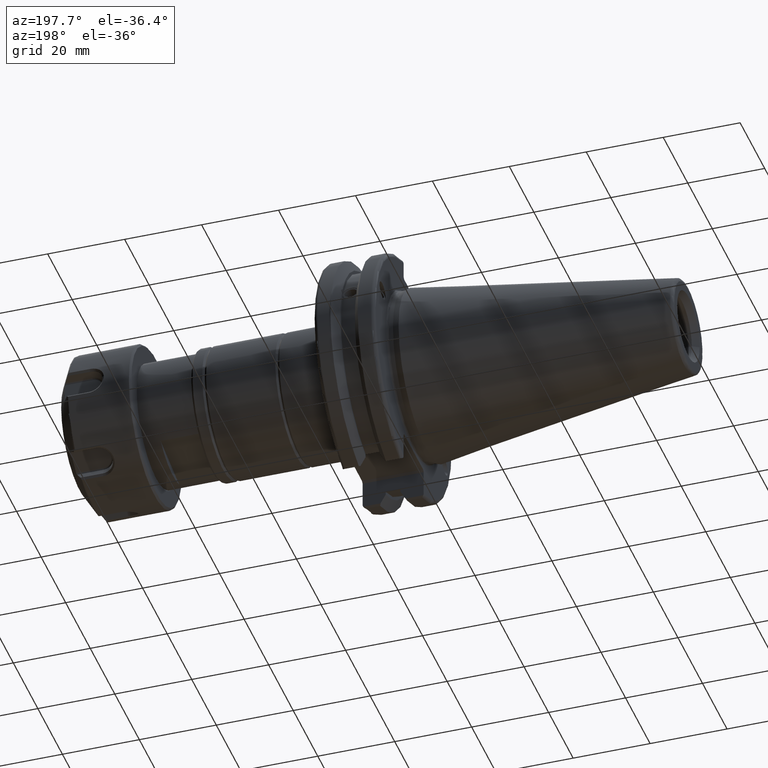
[diagram: clean part render]
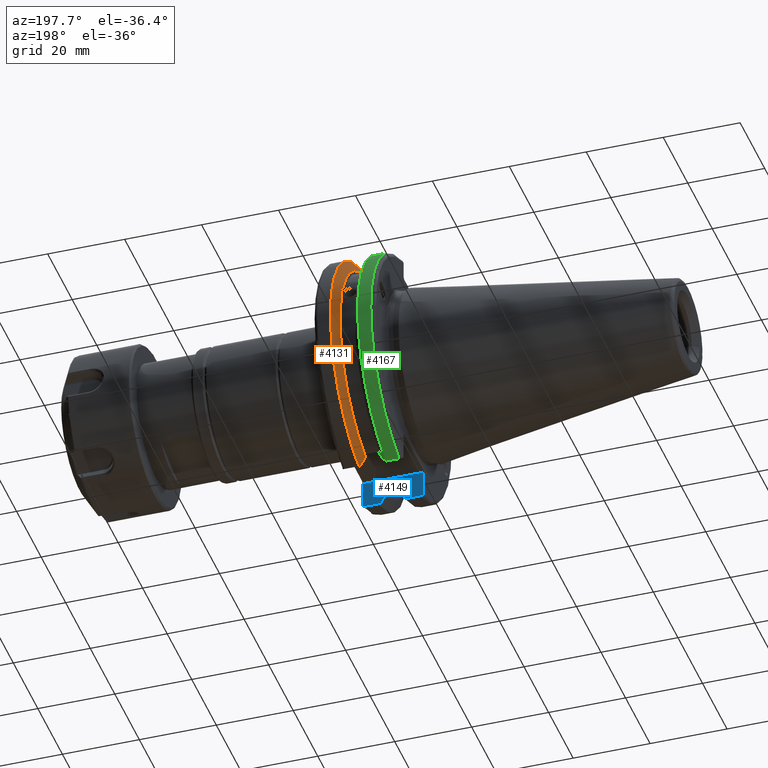
[diagram: same view with three faces highlighted in distinct colors, each labeled with its STEP entity id]
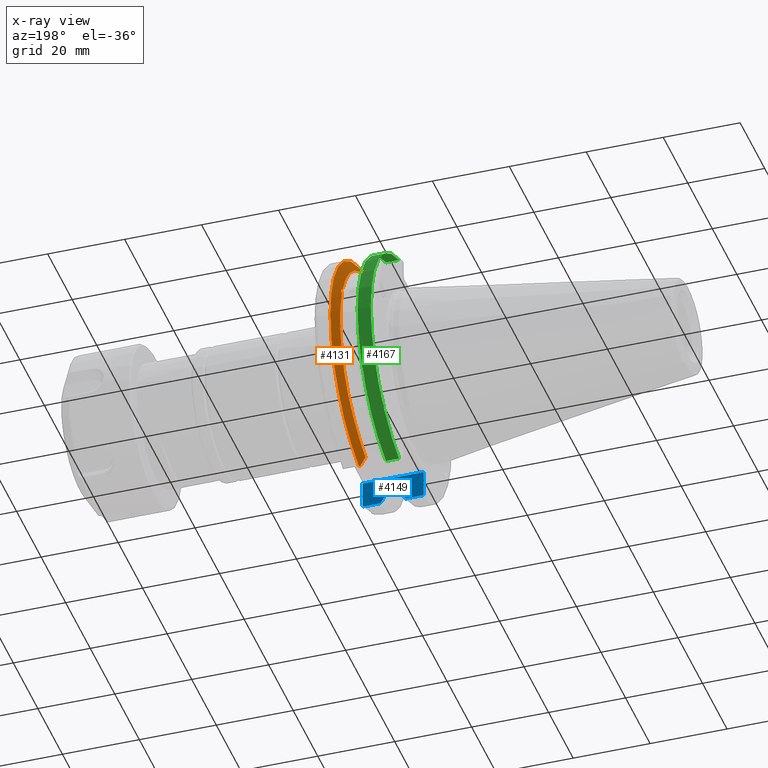
[diagram: x-ray of the same camera — body ghosted, the three highlighted faces saturated]
A machine part, auxiliary view with three faces highlighted in distinct colors.
The next image is the same camera in x-ray (body ghosted, the three faces saturated) — at least one of them is partly hidden behind the body in this view.
Their STEP definitions:

[orange] entity #4131 — the highlighted conical surface has half-angle 60 deg.
#135=(
BOUNDED_CURVE()
B_SPLINE_CURVE(2,(#6727,#6728,#6729),.UNSPECIFIED.,.F.,.F.)
B_SPLINE_CURVE_WITH_KNOTS((3,3),(0.,0.276549142795285),.UNSPECIFIED.)
CURVE()
GEOMETRIC_REPRESENTATION_ITEM()
RATIONAL_B_SPLINE_CURVE((1.,1.00095203903482,1.00031614444868))
REPRESENTATION_ITEM('')
);
#136=(
BOUNDED_CURVE()
B_SPLINE_CURVE(2,(#6731,#6732,#6733),.UNSPECIFIED.,.F.,.F.)
B_SPLINE_CURVE_WITH_KNOTS((3,3),(0.,0.0639048713675832),.UNSPECIFIED.)
CURVE()
GEOMETRIC_REPRESENTATION_ITEM()
RATIONAL_B_SPLINE_CURVE((1.,1.0002844421829,1.00047644010585))
REPRESENTATION_ITEM('')
);
#137=(
BOUNDED_CURVE()
B_SPLINE_CURVE(2,(#6737,#6738,#6739),.UNSPECIFIED.,.F.,.F.)
B_SPLINE_CURVE_WITH_KNOTS((3,3),(0.329353533631253,0.393258405001026),
 .UNSPECIFIED.)
CURVE()
GEOMETRIC_REPRESENTATION_ITEM()
RATIONAL_B_SPLINE_CURVE((1.00047644010593,1.00028444218295,1.))
REPRESENTATION_ITEM('')
);
#138=(
BOUNDED_CURVE()
B_SPLINE_CURVE(2,(#6741,#6742,#6743),.UNSPECIFIED.,.F.,.F.)
B_SPLINE_CURVE_WITH_KNOTS((3,3),(0.0550586467398919,0.331607789535851),
 .UNSPECIFIED.)
CURVE()
GEOMETRIC_REPRESENTATION_ITEM()
RATIONAL_B_SPLINE_CURVE((1.00031614444973,1.00095203903796,1.))
REPRESENTATION_ITEM('')
);
#162=B_SPLINE_CURVE_WITH_KNOTS('',3,(#6652,#6653,#6654,#6655,#6656,#6657,
#6658,#6659),.UNSPECIFIED.,.F.,.F.,(4,2,2,4),(0.451995700189026,0.464547828547662,
0.504528771685167,0.544509714822672),.UNSPECIFIED.);
#166=B_SPLINE_CURVE_WITH_KNOTS('',3,(#6714,#6715,#6716,#6717,#6718,#6719,
#6720,#6721),.UNSPECIFIED.,.F.,.F.,(4,2,2,4),(0.544509714822672,0.584490657960178,
0.624471601097683,0.637023729456321),.UNSPECIFIED.);
#555=FACE_OUTER_BOUND('',#826,.T.);
#826=EDGE_LOOP('',(#3046,#3047,#3048,#3049,#3050,#3051,#3052,#3053,#3054));
#1618=CIRCLE('',#4585,28.9593772964944);
#1619=CIRCLE('',#4586,31.75);
#1620=CIRCLE('',#4587,28.9593772964944);
#1895=VERTEX_POINT('',#6649);
#1896=VERTEX_POINT('',#6651);
#1903=VERTEX_POINT('',#6712);
#1904=VERTEX_POINT('',#6724);
#1905=VERTEX_POINT('',#6726);
#1906=VERTEX_POINT('',#6730);
#1907=VERTEX_POINT('',#6734);
#1908=VERTEX_POINT('',#6736);
#1909=VERTEX_POINT('',#6740);
#2329=EDGE_CURVE('',#1896,#1895,#162,.T.);
#2337=EDGE_CURVE('',#1895,#1903,#166,.T.);
#2338=EDGE_CURVE('',#1903,#1904,#1618,.T.);
#2339=EDGE_CURVE('',#1904,#1905,#135,.T.);
#2340=EDGE_CURVE('',#1906,#1905,#136,.T.);
#2341=EDGE_CURVE('',#1907,#1906,#1619,.T.);
#2342=EDGE_CURVE('',#1908,#1907,#137,.T.);
#2343=EDGE_CURVE('',#1908,#1909,#138,.T.);
#2344=EDGE_CURVE('',#1909,#1896,#1620,.T.);
#3046=ORIENTED_EDGE('',*,*,#2329,.T.);
#3047=ORIENTED_EDGE('',*,*,#2337,.T.);
#3048=ORIENTED_EDGE('',*,*,#2338,.T.);
#3049=ORIENTED_EDGE('',*,*,#2339,.T.);
#3050=ORIENTED_EDGE('',*,*,#2340,.F.);
#3051=ORIENTED_EDGE('',*,*,#2341,.F.);
#3052=ORIENTED_EDGE('',*,*,#2342,.F.);
#3053=ORIENTED_EDGE('',*,*,#2343,.T.);
#3054=ORIENTED_EDGE('',*,*,#2344,.T.);
#4042=CONICAL_SURFACE('',#4584,30.3546886482472,1.0471975511966);
#4131=ADVANCED_FACE('',(#555),#4042,.T.);
#4584=AXIS2_PLACEMENT_3D('',#6723,#5268,#5269);
#4585=AXIS2_PLACEMENT_3D('',#6725,#5270,#5271);
#4586=AXIS2_PLACEMENT_3D('',#6735,#5272,#5273);
#4587=AXIS2_PLACEMENT_3D('',#6744,#5274,#5275);
#5268=DIRECTION('center_axis',(1.,0.,0.));
#5269=DIRECTION('ref_axis',(0.,1.,0.));
#5270=DIRECTION('center_axis',(1.,0.,0.));
#5271=DIRECTION('ref_axis',(0.,0.,-1.));
#5272=DIRECTION('center_axis',(1.,0.,0.));
#5273=DIRECTION('ref_axis',(0.,0.,-1.));
#5274=DIRECTION('center_axis',(1.,0.,0.));
#5275=DIRECTION('ref_axis',(0.,0.,-1.));
#6649=CARTESIAN_POINT('',(13.2341,27.51401829017,10.0142836826778));
#6651=CARTESIAN_POINT('',(13.0491,27.4956274489925,9.09043478536247));
#6652=CARTESIAN_POINT('Ctrl Pts',(13.0491,27.4956274489925,9.09043478536247));
#6653=CARTESIAN_POINT('Ctrl Pts',(13.0632204071996,27.5087667900418,9.12860597076219));
#6654=CARTESIAN_POINT('Ctrl Pts',(13.0766929817857,27.5206055003513,9.16696618806878));
#6655=CARTESIAN_POINT('Ctrl Pts',(13.130081441159,27.5642934663232,9.32791534028656));
#6656=CARTESIAN_POINT('Ctrl Pts',(13.1682197084175,27.5867382255984,9.46717946402648));
#6657=CARTESIAN_POINT('Ctrl Pts',(13.2204106446058,27.5847569104122,9.74771639360672));
#6658=CARTESIAN_POINT('Ctrl Pts',(13.2341,27.559599249844,9.8890510252165));
#6659=CARTESIAN_POINT('Ctrl Pts',(13.2341,27.51401829017,10.0142836826778));
#6712=CARTESIAN_POINT('',(13.0491,26.9060914640648,10.7101715919071));
#6714=CARTESIAN_POINT('Ctrl Pts',(13.2341,27.51401829017,10.0142836826778));
#6715=CARTESIAN_POINT('Ctrl Pts',(13.2341,27.4684373304961,10.139516340139));
#6716=CARTESIAN_POINT('Ctrl Pts',(13.2204106446058,27.3968610665578,10.2639559818059));
#6717=CARTESIAN_POINT('Ctrl Pts',(13.1682197084175,27.2180531796526,10.4801333026531));
#6718=CARTESIAN_POINT('Ctrl Pts',(13.130081441159,27.1113422433189,10.5723885976054));
#6719=CARTESIAN_POINT('Ctrl Pts',(13.0766929817857,26.9744191989197,10.6676007180674));
#6720=CARTESIAN_POINT('Ctrl Pts',(13.0632204071996,26.9406927482839,10.6893765730703));
#6721=CARTESIAN_POINT('Ctrl Pts',(13.0491,26.9060914640648,10.7101715919071));
#6723=CARTESIAN_POINT('Origin',(13.8546833845378,0.,0.));
#6724=CARTESIAN_POINT('',(13.0491,8.19,27.7771386827498));
#6725=CARTESIAN_POINT('Origin',(13.0491,0.,0.));
#6726=CARTESIAN_POINT('',(14.3815146964874,8.19,30.1755016258903));
#6727=CARTESIAN_POINT('Ctrl Pts',(13.0491,8.19,27.7771386827498));
#6728=CARTESIAN_POINT('Ctrl Pts',(13.6877364384881,8.19,28.930368953992));
#6729=CARTESIAN_POINT('Ctrl Pts',(14.3815146964874,8.19,30.1755016258903));
#6730=CARTESIAN_POINT('',(14.6602667690756,8.67204822802685,30.5427254764662));
#6731=CARTESIAN_POINT('Ctrl Pts',(14.6602667690756,8.67204822802687,30.5427254764662));
#6732=CARTESIAN_POINT('Ctrl Pts',(14.5192085187837,8.42917748262644,30.357706789263));
#6733=CARTESIAN_POINT('Ctrl Pts',(14.3815146964874,8.19,30.1755016258903));
#6734=CARTESIAN_POINT('',(14.6602667690756,8.67204822802685,-30.5427254764662));
#6735=CARTESIAN_POINT('Origin',(14.6602667690756,0.,0.));
#6736=CARTESIAN_POINT('',(14.3815146964874,8.18999999999999,-30.1755016258903));
#6737=CARTESIAN_POINT('Ctrl Pts',(14.3815146964874,8.18999999999999,-30.1755016258903));
#6738=CARTESIAN_POINT('Ctrl Pts',(14.5192085187884,8.4291774826346,-30.3577067892692));
#6739=CARTESIAN_POINT('Ctrl Pts',(14.6602667690756,8.67204822802686,-30.5427254764662));
#6740=CARTESIAN_POINT('',(13.0491,8.19,-27.7771386827498));
#6741=CARTESIAN_POINT('Ctrl Pts',(14.3815146964874,8.18999999999999,-30.1755016258903));
#6742=CARTESIAN_POINT('Ctrl Pts',(13.6877364384816,8.18999999999999,-28.9303689539805));
#6743=CARTESIAN_POINT('Ctrl Pts',(13.0491,8.19,-27.7771386827498));
#6744=CARTESIAN_POINT('Origin',(13.0491,0.,0.));

[blue] entity #4149 — the highlighted planar face has unit normal (0, -1, 0).
#131=(
BOUNDED_CURVE()
B_SPLINE_CURVE(2,(#6554,#6555,#6556),.UNSPECIFIED.,.F.,.F.)
B_SPLINE_CURVE_WITH_KNOTS((3,3),(0.,0.276549142795441),.UNSPECIFIED.)
CURVE()
GEOMETRIC_REPRESENTATION_ITEM()
RATIONAL_B_SPLINE_CURVE((1.,1.00095203903848,1.0003161444499))
REPRESENTATION_ITEM('')
);
#141=(
BOUNDED_CURVE()
B_SPLINE_CURVE(2,(#6931,#6932,#6933),.UNSPECIFIED.,.F.,.F.)
B_SPLINE_CURVE_WITH_KNOTS((3,3),(0.0550586467393311,0.331607789535851),
 .UNSPECIFIED.)
CURVE()
GEOMETRIC_REPRESENTATION_ITEM()
RATIONAL_B_SPLINE_CURVE((1.00031614445049,1.00095203904028,1.))
REPRESENTATION_ITEM('')
);
#172=B_SPLINE_CURVE_WITH_KNOTS('',3,(#6875,#6876,#6877,#6878,#6879,#6880),
 .UNSPECIFIED.,.F.,.F.,(4,2,4),(0.097738363091569,0.112311108149119,0.150804350305566),
 .UNSPECIFIED.);
#177=B_SPLINE_CURVE_WITH_KNOTS('',3,(#6936,#6937,#6938,#6939,#6940,#6941),
 .UNSPECIFIED.,.F.,.F.,(4,2,4),(0.452741154494498,0.491581665024872,0.505824174364157),
 .UNSPECIFIED.);
#353=PLANE('',#4622);
#573=FACE_OUTER_BOUND('',#850,.T.);
#850=EDGE_LOOP('',(#3159,#3160,#3161,#3162,#3163,#3164,#3165,#3166,#3167,
#3168,#3169,#3170));
#1077=LINE('',#6325,#1329);
#1103=LINE('',#6575,#1355);
#1104=LINE('',#6579,#1356);
#1105=LINE('',#6583,#1357);
#1131=LINE('',#6811,#1383);
#1146=LINE('',#6929,#1398);
#1147=LINE('',#6935,#1399);
#1148=LINE('',#6942,#1400);
#1329=VECTOR('',#5061,10.);
#1355=VECTOR('',#5217,10.);
#1356=VECTOR('',#5222,10.);
#1357=VECTOR('',#5227,10.);
#1383=VECTOR('',#5343,10.);
#1398=VECTOR('',#5378,10.);
#1399=VECTOR('',#5379,10.);
#1400=VECTOR('',#5380,10.);
#1828=VERTEX_POINT('',#6322);
#1829=VERTEX_POINT('',#6324);
#1875=VERTEX_POINT('',#6551);
#1876=VERTEX_POINT('',#6553);
#1881=VERTEX_POINT('',#6573);
#1882=VERTEX_POINT('',#6577);
#1883=VERTEX_POINT('',#6581);
#1923=VERTEX_POINT('',#6789);
#1933=VERTEX_POINT('',#6809);
#1944=VERTEX_POINT('',#6874);
#1953=VERTEX_POINT('',#6930);
#1954=VERTEX_POINT('',#6934);
#2234=EDGE_CURVE('',#1828,#1829,#1077,.T.);
#2300=EDGE_CURVE('',#1875,#1876,#131,.T.);
#2307=EDGE_CURVE('',#1881,#1875,#1103,.T.);
#2309=EDGE_CURVE('',#1882,#1881,#1104,.T.);
#2311=EDGE_CURVE('',#1883,#1882,#1105,.T.);
#2376=EDGE_CURVE('',#1933,#1923,#1131,.T.);
#2393=EDGE_CURVE('',#1944,#1828,#172,.T.);
#2406=EDGE_CURVE('',#1876,#1944,#1146,.T.);
#2407=EDGE_CURVE('',#1953,#1883,#141,.T.);
#2408=EDGE_CURVE('',#1954,#1953,#1147,.T.);
#2409=EDGE_CURVE('',#1923,#1954,#177,.T.);
#2410=EDGE_CURVE('',#1829,#1933,#1148,.T.);
#3159=ORIENTED_EDGE('',*,*,#2393,.F.);
#3160=ORIENTED_EDGE('',*,*,#2406,.F.);
#3161=ORIENTED_EDGE('',*,*,#2300,.F.);
#3162=ORIENTED_EDGE('',*,*,#2307,.F.);
#3163=ORIENTED_EDGE('',*,*,#2309,.F.);
#3164=ORIENTED_EDGE('',*,*,#2311,.F.);
#3165=ORIENTED_EDGE('',*,*,#2407,.F.);
#3166=ORIENTED_EDGE('',*,*,#2408,.F.);
#3167=ORIENTED_EDGE('',*,*,#2409,.F.);
#3168=ORIENTED_EDGE('',*,*,#2376,.F.);
#3169=ORIENTED_EDGE('',*,*,#2410,.F.);
#3170=ORIENTED_EDGE('',*,*,#2234,.F.);
#4149=ADVANCED_FACE('',(#573),#353,.F.);
#4622=AXIS2_PLACEMENT_3D('',#6928,#5376,#5377);
#5061=DIRECTION('',(0.,0.,1.));
#5217=DIRECTION('',(0.,0.,-1.));
#5222=DIRECTION('',(1.,0.,0.));
#5227=DIRECTION('',(0.,0.,1.));
#5343=DIRECTION('',(0.,0.,-1.));
#5376=DIRECTION('center_axis',(0.,-1.,0.));
#5377=DIRECTION('ref_axis',(-1.,0.,0.));
#5378=DIRECTION('',(1.,0.,0.));
#5379=DIRECTION('',(1.,0.,0.));
#5380=DIRECTION('',(-1.,0.,0.));
#6322=CARTESIAN_POINT('',(19.05,-8.19,-29.6392712461019));
#6324=CARTESIAN_POINT('',(19.05,-8.19,-23.1));
#6325=CARTESIAN_POINT('',(19.05,-8.19,-11.3));
#6551=CARTESIAN_POINT('',(13.0491,-8.19,-27.7771386827498));
#6553=CARTESIAN_POINT('',(14.3815146964874,-8.19,-30.1755016258903));
#6554=CARTESIAN_POINT('Ctrl Pts',(13.0491,-8.19,-27.7771386827498));
#6555=CARTESIAN_POINT('Ctrl Pts',(13.6877364384886,-8.19,-28.930368953993));
#6556=CARTESIAN_POINT('Ctrl Pts',(14.3815146964874,-8.19,-30.1755016258903));
#6573=CARTESIAN_POINT('',(13.0491,-8.19,-26.932255754021));
#6575=CARTESIAN_POINT('',(13.0491,-8.19,-11.3));
#6577=CARTESIAN_POINT('',(9.2191,-8.19,-26.932255754021));
#6579=CARTESIAN_POINT('',(11.1341,-8.19,-26.932255754021));
#6581=CARTESIAN_POINT('',(9.2191,-8.19,-27.7771386827498));
#6583=CARTESIAN_POINT('',(9.2191,-8.19,-11.3));
#6789=CARTESIAN_POINT('',(3.175,-8.19,-29.6392712461019));
#6809=CARTESIAN_POINT('',(3.175,-8.19,-23.1));
#6811=CARTESIAN_POINT('',(3.175,-8.19,-11.3));
#6874=CARTESIAN_POINT('',(18.9058722749097,-8.19,-30.1755016258903));
#6875=CARTESIAN_POINT('Ctrl Pts',(18.9058722749097,-8.19,-30.1755016258903));
#6876=CARTESIAN_POINT('Ctrl Pts',(18.9324477233044,-8.19,-30.1299319366157));
#6877=CARTESIAN_POINT('Ctrl Pts',(18.9550700364447,-8.19,-30.0829389905409));
#6878=CARTESIAN_POINT('Ctrl Pts',(19.0210043632013,-8.19,-29.9188002007263));
#6879=CARTESIAN_POINT('Ctrl Pts',(19.05,-8.19,-29.76758205329));
#6880=CARTESIAN_POINT('Ctrl Pts',(19.05,-8.19,-29.6392712461019));
#6928=CARTESIAN_POINT('Origin',(20.05,-8.19,-22.6));
#6929=CARTESIAN_POINT('',(16.8551333845378,-8.19,-30.1755016258903));
#6930=CARTESIAN_POINT('',(7.88668530351256,-8.19,-30.1755016258903));
#6931=CARTESIAN_POINT('Ctrl Pts',(7.88668530351256,-8.19,-30.1755016258903));
#6932=CARTESIAN_POINT('Ctrl Pts',(8.5804635615239,-8.19,-28.9303689539705));
#6933=CARTESIAN_POINT('Ctrl Pts',(9.2191,-8.19,-27.7771386827498));
#6934=CARTESIAN_POINT('',(3.31912772509028,-8.19,-30.1755016258903));
#6935=CARTESIAN_POINT('',(5.39146661546218,-8.19,-30.1755016258903));
#6936=CARTESIAN_POINT('Ctrl Pts',(3.175,-8.19,-29.6392712461018));
#6937=CARTESIAN_POINT('Ctrl Pts',(3.175,-8.19,-29.7687396145364));
#6938=CARTESIAN_POINT('Ctrl Pts',(3.20451443291695,-8.19,-29.9212724384851));
#6939=CARTESIAN_POINT('Ctrl Pts',(3.27103565282437,-8.19,-30.0852355256475));
#6940=CARTESIAN_POINT('Ctrl Pts',(3.29318362718666,-8.19,-30.131014531546));
#6941=CARTESIAN_POINT('Ctrl Pts',(3.31912772509028,-8.19,-30.1755016258903));
#6942=CARTESIAN_POINT('',(17.87875,-8.19,-23.1));

[green] entity #4167 — the highlighted cylindrical surface (partial cylindrical patch) has radius 31.75 mm, axis along (1, 0, 0).
#462=CYLINDRICAL_SURFACE('',#4649,31.75);
#591=FACE_OUTER_BOUND('',#869,.T.);
#869=EDGE_LOOP('',(#3251,#3252,#3253,#3254));
#1151=LINE('',#7006,#1403);
#1162=LINE('',#7048,#1414);
#1403=VECTOR('',#5401,10.);
#1414=VECTOR('',#5448,10.);
#1639=CIRCLE('',#4630,31.75);
#1646=CIRCLE('',#4650,31.75);
#1960=VERTEX_POINT('',#6979);
#1961=VERTEX_POINT('',#6988);
#1962=VERTEX_POINT('',#7005);
#1969=VERTEX_POINT('',#7047);
#2420=EDGE_CURVE('',#1960,#1961,#1639,.T.);
#2423=EDGE_CURVE('',#1961,#1962,#1151,.T.);
#2442=EDGE_CURVE('',#1969,#1960,#1162,.T.);
#2443=EDGE_CURVE('',#1962,#1969,#1646,.T.);
#3251=ORIENTED_EDGE('',*,*,#2420,.F.);
#3252=ORIENTED_EDGE('',*,*,#2442,.F.);
#3253=ORIENTED_EDGE('',*,*,#2443,.F.);
#3254=ORIENTED_EDGE('',*,*,#2423,.F.);
#4167=ADVANCED_FACE('',(#591),#462,.T.);
#4630=AXIS2_PLACEMENT_3D('',#6989,#5397,#5398);
#4649=AXIS2_PLACEMENT_3D('',#7046,#5446,#5447);
#4650=AXIS2_PLACEMENT_3D('',#7049,#5449,#5450);
#5397=DIRECTION('center_axis',(-1.,0.,0.));
#5398=DIRECTION('ref_axis',(0.,1.,1.60812264967664E-16));
#5401=DIRECTION('',(1.,0.,0.));
#5446=DIRECTION('center_axis',(1.,0.,0.));
#5447=DIRECTION('ref_axis',(0.,1.,0.));
#5448=DIRECTION('',(-1.,0.,0.));
#5449=DIRECTION('center_axis',(1.,0.,0.));
#5450=DIRECTION('ref_axis',(0.,0.,-1.));
#6979=CARTESIAN_POINT('',(4.175,8.67204822802685,30.5427254764662));
#6988=CARTESIAN_POINT('',(4.175,8.67204822802685,-30.5427254764662));
#6989=CARTESIAN_POINT('Origin',(4.175,0.,0.));
#7005=CARTESIAN_POINT('',(7.60793323092436,8.67204822802685,-30.5427254764662));
#7006=CARTESIAN_POINT('',(5.39146661546218,8.67204822802685,-30.5427254764662));
#7046=CARTESIAN_POINT('Origin',(5.39146661546218,0.,0.));
#7047=CARTESIAN_POINT('',(7.60793323092436,8.67204822802685,30.5427254764662));
#7048=CARTESIAN_POINT('',(5.39146661546218,8.67204822802685,30.5427254764662));
#7049=CARTESIAN_POINT('Origin',(7.60793323092436,0.,0.));